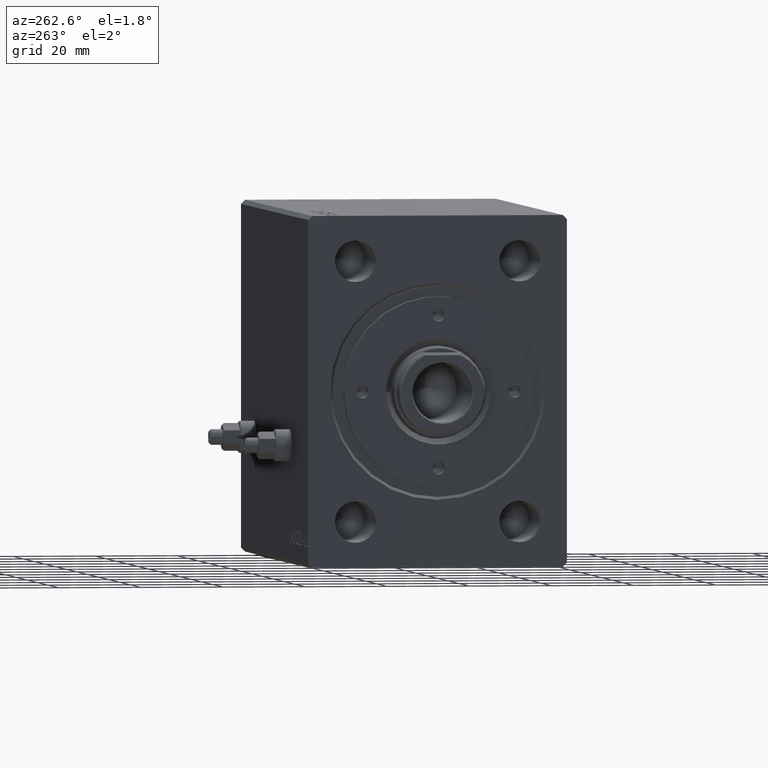
[diagram: clean part render]
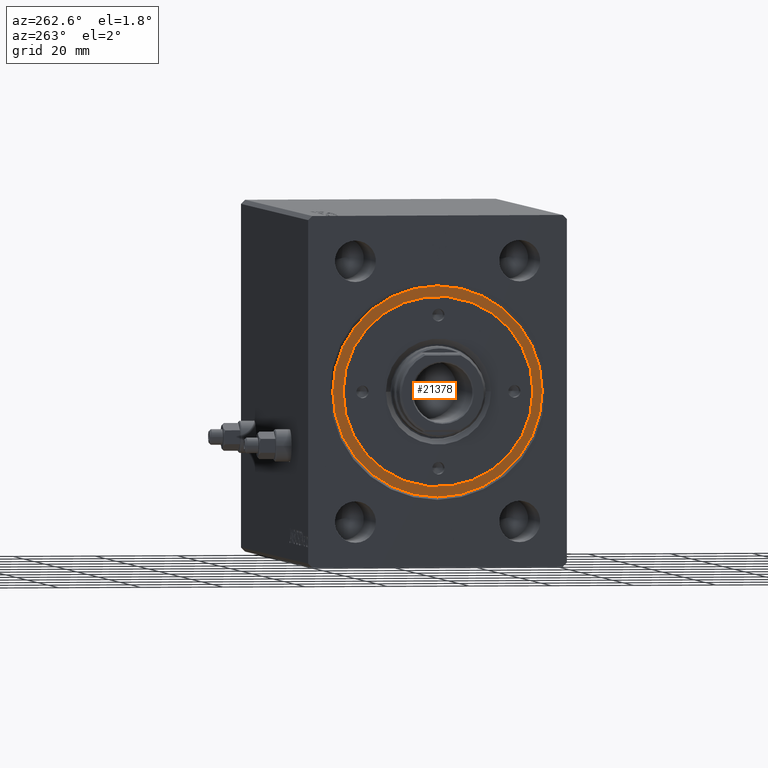
[diagram: same view with one face highlighted and labeled with its STEP entity id]
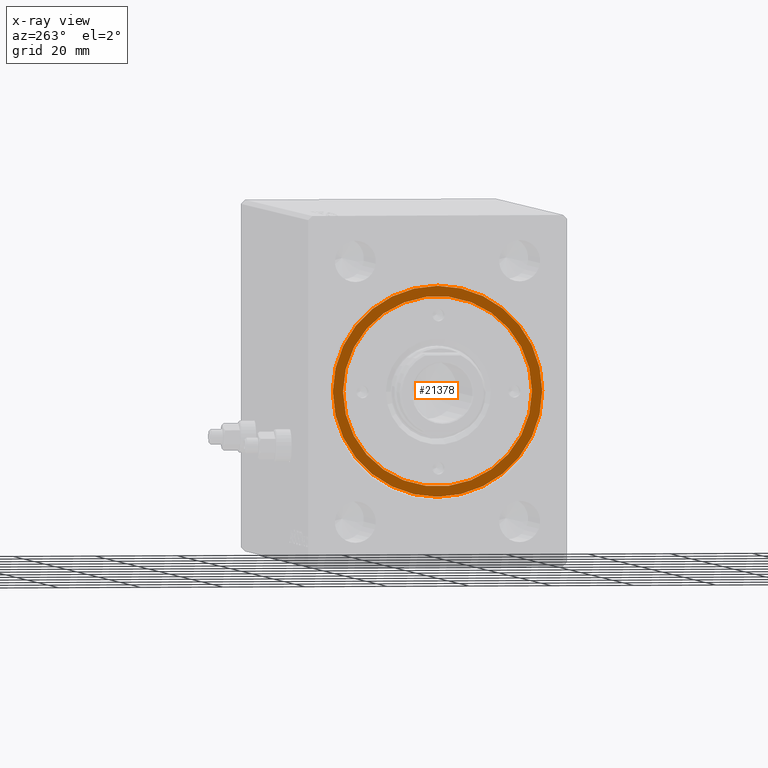
[diagram: x-ray of the same camera — body ghosted, the highlighted face saturated]
A machine part, auxiliary view. The second image highlights one B-rep face of the part: STEP entity #21378.
The next image is the same camera in x-ray: the body ghosted, the highlighted face saturated — about 0% of this face is hidden behind the body in this view.
In plain terms, the highlighted planar face has unit normal (-1, 0, 0).
Its self-contained STEP definition (entity closure, byte-faithful):
#48 = EDGE_LOOP ( 'NONE', ( #23810, #28993 ) ) ;
#1931 = EDGE_CURVE ( 'NONE', #12613, #18662, #12497, .T. ) ;
#2163 = DIRECTION ( 'NONE',  ( 1.000000000000000000, 0.000000000000000000, 0.000000000000000000 ) ) ;
#3161 = CIRCLE ( 'NONE', #4609, 25.50000000000000000 ) ;
#4609 = AXIS2_PLACEMENT_3D ( 'NONE', #44790, #20187, #9721 ) ;
#5242 = AXIS2_PLACEMENT_3D ( 'NONE', #21978, #11732, #39974 ) ;
#6757 = ORIENTED_EDGE ( 'NONE', *, *, #1931, .F. ) ;
#7005 = EDGE_CURVE ( 'NONE', #11442, #34470, #9775, .T. ) ;
#7152 = DIRECTION ( 'NONE',  ( 1.000000000000000000, 0.000000000000000000, 0.000000000000000000 ) ) ;
#8940 = EDGE_CURVE ( 'NONE', #34470, #11442, #3161, .T. ) ;
#9679 = FACE_BOUND ( 'NONE', #10984, .T. ) ;
#9721 = DIRECTION ( 'NONE',  ( 1.000000000000000000, 0.000000000000000000, 0.000000000000000000 ) ) ;
#9775 = CIRCLE ( 'NONE', #15584, 25.50000000000000000 ) ;
#10984 = EDGE_LOOP ( 'NONE', ( #17947, #6757 ) ) ;
#11442 = VERTEX_POINT ( 'NONE', #14706 ) ;
#11732 = DIRECTION ( 'NONE',  ( 0.000000000000000000, 0.000000000000000000, 1.000000000000000000 ) ) ;
#12497 = CIRCLE ( 'NONE', #5242, 23.00000000000000000 ) ;
#12613 = VERTEX_POINT ( 'NONE', #28115 ) ;
#12649 = CARTESIAN_POINT ( 'NONE',  ( 0.000000000000000000, 0.000000000000000000, 8.199999999999999289 ) ) ;
#13779 = DIRECTION ( 'NONE',  ( 0.000000000000000000, 0.000000000000000000, 1.000000000000000000 ) ) ;
#14706 = CARTESIAN_POINT ( 'NONE',  ( -25.50000000000000000, 0.000000000000000000, 8.199999999999999289 ) ) ;
#15584 = AXIS2_PLACEMENT_3D ( 'NONE', #16050, #36798, #2163 ) ;
#15833 = FACE_OUTER_BOUND ( 'NONE', #48, .T. ) ;
#16050 = CARTESIAN_POINT ( 'NONE',  ( 0.000000000000000000, 0.000000000000000000, 8.199999999999999289 ) ) ;
#17947 = ORIENTED_EDGE ( 'NONE', *, *, #22960, .F. ) ;
#18662 = VERTEX_POINT ( 'NONE', #20839 ) ;
#19473 = DIRECTION ( 'NONE',  ( 1.000000000000000000, 0.000000000000000000, -0.000000000000000000 ) ) ;
#20187 = DIRECTION ( 'NONE',  ( 0.000000000000000000, 0.000000000000000000, 1.000000000000000000 ) ) ;
#20839 = CARTESIAN_POINT ( 'NONE',  ( -23.00000000000000000, 0.000000000000000000, 8.199999999999999289 ) ) ;
#21378 = ADVANCED_FACE ( 'NONE', ( #9679, #15833 ), #34042, .T. ) ;
#21978 = CARTESIAN_POINT ( 'NONE',  ( 0.000000000000000000, 0.000000000000000000, 8.199999999999999289 ) ) ;
#22960 = EDGE_CURVE ( 'NONE', #18662, #12613, #38171, .T. ) ;
#23810 = ORIENTED_EDGE ( 'NONE', *, *, #7005, .T. ) ;
#25812 = AXIS2_PLACEMENT_3D ( 'NONE', #44978, #13779, #7152 ) ;
#28115 = CARTESIAN_POINT ( 'NONE',  ( 23.00000000000000000, 2.816687638038912352E-15, 8.199999999999999289 ) ) ;
#28993 = ORIENTED_EDGE ( 'NONE', *, *, #8940, .T. ) ;
#29731 = DIRECTION ( 'NONE',  ( 0.000000000000000000, 0.000000000000000000, 1.000000000000000000 ) ) ;
#34042 = PLANE ( 'NONE',  #43219 ) ;
#34470 = VERTEX_POINT ( 'NONE', #34820 ) ;
#34820 = CARTESIAN_POINT ( 'NONE',  ( 25.50000000000000000, 3.122849337825750222E-15, 8.199999999999999289 ) ) ;
#36798 = DIRECTION ( 'NONE',  ( 0.000000000000000000, 0.000000000000000000, 1.000000000000000000 ) ) ;
#38171 = CIRCLE ( 'NONE', #25812, 23.00000000000000000 ) ;
#39974 = DIRECTION ( 'NONE',  ( 1.000000000000000000, 0.000000000000000000, 0.000000000000000000 ) ) ;
#43219 = AXIS2_PLACEMENT_3D ( 'NONE', #12649, #29731, #19473 ) ;
#44790 = CARTESIAN_POINT ( 'NONE',  ( 0.000000000000000000, 0.000000000000000000, 8.199999999999999289 ) ) ;
#44978 = CARTESIAN_POINT ( 'NONE',  ( 0.000000000000000000, 0.000000000000000000, 8.199999999999999289 ) ) ;